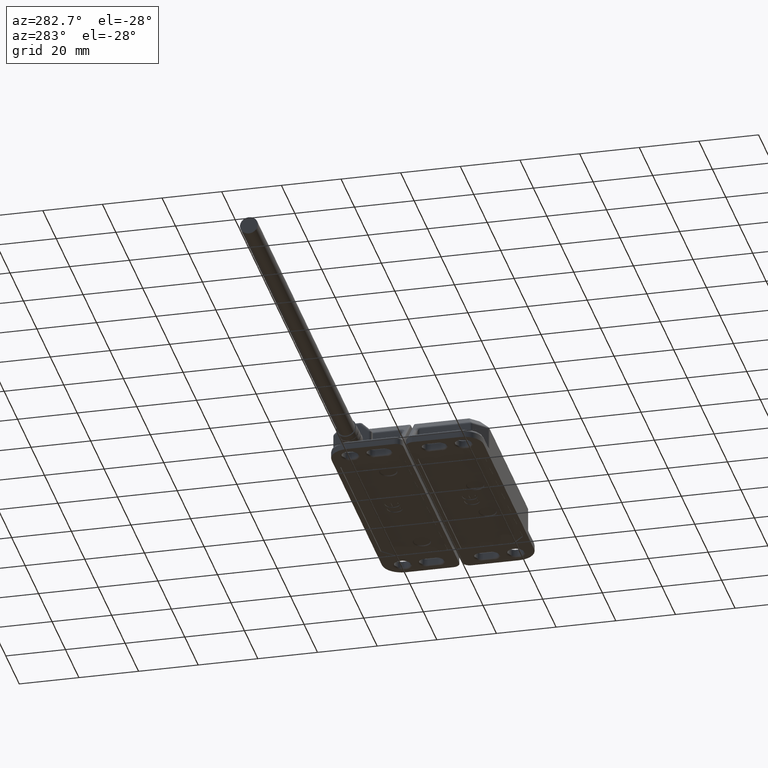
[diagram: clean part render]
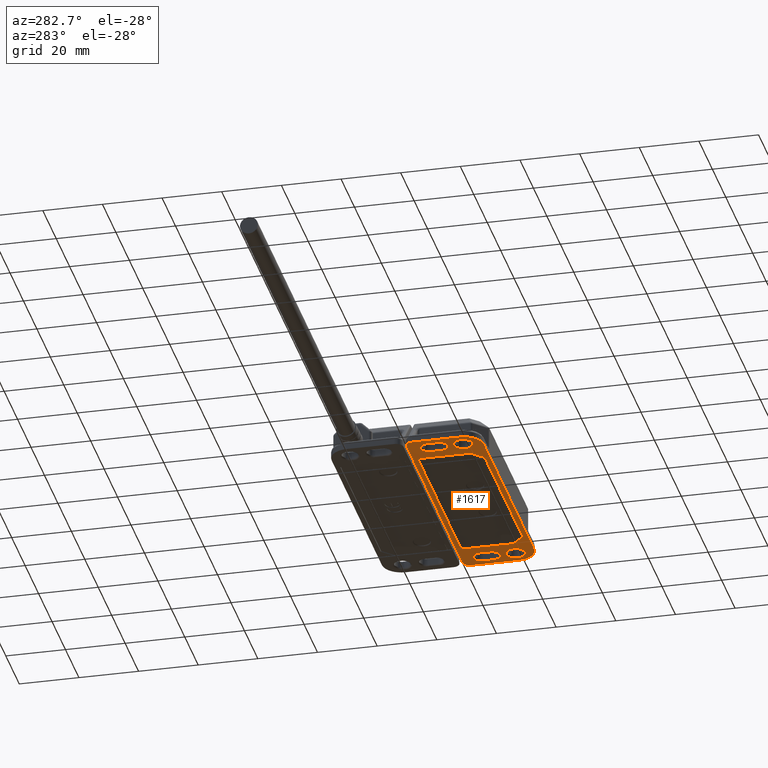
[diagram: same view with one face highlighted and labeled with its STEP entity id]
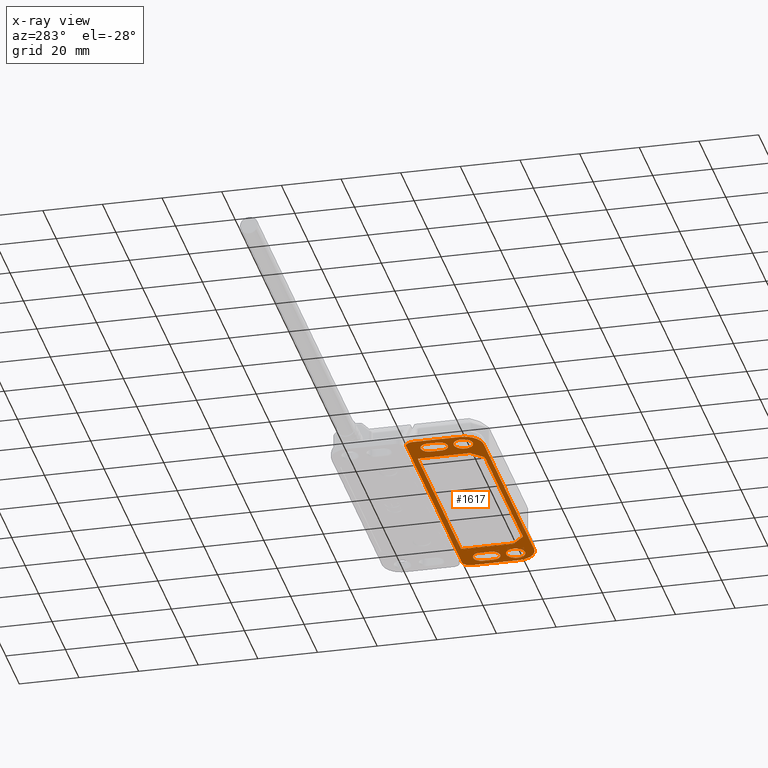
[diagram: x-ray of the same camera — body ghosted, the highlighted face saturated]
A machine part, auxiliary view. The second image highlights one B-rep face of the part: STEP entity #1617.
The next image is the same camera in x-ray: the body ghosted, the highlighted face saturated — about 0% of this face is hidden behind the body in this view.
In plain terms, the highlighted planar face has unit normal (0, -0, -1).
Its self-contained STEP definition (entity closure, byte-faithful):
#33 = CARTESIAN_POINT ( 'NONE',  ( 3.295273954928055200, 0.5210394319530911000, -0.0000000000000000000 ) ) ;
#68 = CARTESIAN_POINT ( 'NONE',  ( 0.6125085215207710700, 0.9115572201020977200, -6.829619984160658000E-017 ) ) ;
#135 = EDGE_CURVE ( 'NONE', #3612, #22815, #5344, .T. ) ;
#166 = ORIENTED_EDGE ( 'NONE', *, *, #10923, .T. ) ;
#174 = EDGE_CURVE ( 'NONE', #11935, #6633, #22041, .T. ) ;
#177 = CARTESIAN_POINT ( 'NONE',  ( 3.144680806254596600, 0.7598319794446506400, -0.0000000000000000000 ) ) ;
#182 = VECTOR ( 'NONE', #13482, 39.37007874015748100 ) ;
#259 = ORIENTED_EDGE ( 'NONE', *, *, #5769, .T. ) ;
#360 = CARTESIAN_POINT ( 'NONE',  ( 3.334910545885720900, 0.1868911393547552100, -0.0000000000000000000 ) ) ;
#373 = DIRECTION ( 'NONE',  ( 0.0000000000000000000, 1.000000000000000000, 0.0000000000000000000 ) ) ;
#425 = CARTESIAN_POINT ( 'NONE',  ( 0.2413587166354577700, 0.6104818388087681600, -0.0000000000000000000 ) ) ;
#432 = CARTESIAN_POINT ( 'NONE',  ( 3.164585275882892300, 0.2366451646214204300, -0.0000000000000000000 ) ) ;
#464 = VERTEX_POINT ( 'NONE', #2534 ) ;
#565 = CARTESIAN_POINT ( 'NONE',  ( 3.149852238804296400, 0.6838373219009926700, -0.0000000000000000000 ) ) ;
#628 = EDGE_CURVE ( 'NONE', #1657, #21210, #16453, .T. ) ;
#634 = CARTESIAN_POINT ( 'NONE',  ( 3.383195120379753900, 0.6779640473491647100, -0.0000000000000000000 ) ) ;
#678 = CARTESIAN_POINT ( 'NONE',  ( 3.003937007874016200, 0.9842519685039370400, 0.0000000000000000000 ) ) ;
#703 = CARTESIAN_POINT ( 'NONE',  ( 3.384042401021059900, 0.6799567661381548100, -0.0000000000000000000 ) ) ;
#728 = EDGE_LOOP ( 'NONE', ( #12847, #10164, #20766, #5239, #15913, #11395, #4833, #8941 ) ) ;
#777 = VERTEX_POINT ( 'NONE', #5017 ) ;
#791 = CARTESIAN_POINT ( 'NONE',  ( 3.371063382723834300, 0.6553530241802971700, -0.0000000000000000000 ) ) ;
#803 = DIRECTION ( 'NONE',  ( -0.7071067811865504600, 0.7071067811865444600, 0.0000000000000000000 ) ) ;
#874 = CARTESIAN_POINT ( 'NONE',  ( 3.149161178775382800, 0.6857088321836374300, -0.0000000000000000000 ) ) ;
#928 = FACE_BOUND ( 'NONE', #23057, .T. ) ;
#956 = CARTESIAN_POINT ( 'NONE',  ( 0.1579058189615059900, 0.5165174075409825200, -0.0000000000000000000 ) ) ;
#985 = CARTESIAN_POINT ( 'NONE',  ( 0.08758165726882499700, 0.2582588646958110500, -0.0000000000000000000 ) ) ;
#1056 = CARTESIAN_POINT ( 'NONE',  ( 0.3070866141732285200, 0.4133858267716536400, 0.0000000000000000000 ) ) ;
#1168 = DIRECTION ( 'NONE',  ( -1.000000000000000000, 0.0000000000000000000, -0.0000000000000000000 ) ) ;
#1196 = CARTESIAN_POINT ( 'NONE',  ( 0.0000000000000000000, 0.7283464566929135400, 0.0000000000000000000 ) ) ;
#1323 = CARTESIAN_POINT ( 'NONE',  ( 0.3070866141732285200, 0.2755905511811024300, 0.0000000000000000000 ) ) ;
#1328 = CARTESIAN_POINT ( 'NONE',  ( 3.369088984147055000, 0.8051385095102291400, -0.0000000000000000000 ) ) ;
#1411 = ORIENTED_EDGE ( 'NONE', *, *, #15459, .T. ) ;
#1418 = EDGE_LOOP ( 'NONE', ( #3214, #15709 ) ) ;
#1459 = EDGE_CURVE ( 'NONE', #13305, #11935, #12887, .T. ) ;
#1460 = DIRECTION ( 'NONE',  ( -0.0000000000000000000, -1.000000000000000000, -0.0000000000000000000 ) ) ;
#1491 = CARTESIAN_POINT ( 'NONE',  ( 3.392595091355313100, 0.7481549769095198200, -0.0000000000000000000 ) ) ;
#1497 = CARTESIAN_POINT ( 'NONE',  ( 0.1542143143391676000, 0.8469024247721125300, -0.0000000000000000000 ) ) ;
#1528 = DIRECTION ( 'NONE',  ( -1.000000000000000000, 5.551115123125778300E-014, 0.0000000000000000000 ) ) ;
#1568 = CARTESIAN_POINT ( 'NONE',  ( 3.321065187831918400, 0.8425196580470875100, -0.0000000000000000000 ) ) ;
#1575 = CARTESIAN_POINT ( 'NONE',  ( 0.1570291095687736400, 0.8479048659740181500, -0.0000000000000000000 ) ) ;
#1617 = ADVANCED_FACE ( 'NONE', ( #14345, #928, #19343, #23733, #13748, #11455 ), #5399, .T. ) ;
#1629 = EDGE_CURVE ( 'NONE', #3612, #2225, #9688, .T. ) ;
#1657 = VERTEX_POINT ( 'NONE', #7275 ) ;
#1664 = CARTESIAN_POINT ( 'NONE',  ( 3.281720705985419000, 0.5236193945956255600, -0.0000000000000000000 ) ) ;
#1671 = CARTESIAN_POINT ( 'NONE',  ( 3.302559502042246900, 0.1709768162269582600, -0.0000000000000000000 ) ) ;
#1749 = CARTESIAN_POINT ( 'NONE',  ( 0.3217289496230305600, 0.7481549769099961100, -0.0000000000000000000 ) ) ;
#1754 = CARTESIAN_POINT ( 'NONE',  ( 3.165542681964615700, 0.4547773625820647500, 0.0000000000000000000 ) ) ;
#1761 = CARTESIAN_POINT ( 'NONE',  ( 3.367617717495806900, 0.2289099134639777900, -0.0000000000000000000 ) ) ;
#1791 = CARTESIAN_POINT ( 'NONE',  ( 3.157480314960629600, 0.4133858267716535300, 0.0000000000000000000 ) ) ;
#1798 = LINE ( 'NONE', #11794, #4967 ) ;
#1825 = CARTESIAN_POINT ( 'NONE',  ( 0.3143887788287402800, 0.7737104916636956500, 0.0000000000000000000 ) ) ;
#1863 = VECTOR ( 'NONE', #17417, 39.37007874015748100 ) ;
#1968 = VERTEX_POINT ( 'NONE', #17714 ) ;
#1999 = CARTESIAN_POINT ( 'NONE',  ( 3.370562562221846500, 0.4530794499644984500, 0.0000000000000000000 ) ) ;
#2036 = EDGE_CURVE ( 'NONE', #2225, #14126, #18170, .T. ) ;
#2063 = CARTESIAN_POINT ( 'NONE',  ( 3.153543334079038600, 0.7816951090918182700, -0.0000000000000000000 ) ) ;
#2090 = CARTESIAN_POINT ( 'NONE',  ( 3.366141732283464400, 0.09842519685039372000, 0.0000000000000000000 ) ) ;
#2133 = VECTOR ( 'NONE', #6585, 39.37007874015748100 ) ;
#2134 = CARTESIAN_POINT ( 'NONE',  ( 3.208661417322834300, 0.7283464566929135400, 0.0000000000000000000 ) ) ;
#2207 = ORIENTED_EDGE ( 'NONE', *, *, #14367, .T. ) ;
#2221 = ORIENTED_EDGE ( 'NONE', *, *, #12062, .T. ) ;
#2225 = VERTEX_POINT ( 'NONE', #1196 ) ;
#2270 = ORIENTED_EDGE ( 'NONE', *, *, #23315, .T. ) ;
#2301 = CARTESIAN_POINT ( 'NONE',  ( 0.07931200857283710000, 0.6829824217221258700, 0.0000000000000000000 ) ) ;
#2338 = B_SPLINE_CURVE_WITH_KNOTS ( 'NONE', 3,
 ( #20194, #10953, #1491, #24044, #14691, #5135, #22078, #23964, #3520, #1328, #14443, #7261, #12725, #1568, #3274, #16506, #20350, #22253, #16273, #6946, #20025, #8801, #21926, #13202, #16669, #3589, #7503, #9224, #20685, #18557, #20773, #2063, #5801, #9386, #11122, #177, #11437, #12964 ),
 .UNSPECIFIED., .F., .F.,
 ( 4, 1, 1, 1, 2, 2, 2, 1, 1, 1, 2, 2, 2, 1, 1, 1, 2, 2, 2, 1, 1, 1, 2, 2, 4 ),
 ( 0.0000000000000000000, 0.06250000000001498800, 0.09375000000002208000, 0.1093750000000245100, 0.1171875000000257200, 0.1250000000000269200, 0.2500000000000317500, 0.3125000000000331400, 0.3437500000000355300, 0.3593750000000366900, 0.3671875000000373000, 0.3750000000000379100, 0.5000000000000366400, 0.5625000000000381900, 0.5937500000000410800, 0.6093750000000446300, 0.6171875000000441900, 0.6250000000000437400, 0.7500000000000461900, 0.8125000000000474100, 0.8437500000000473000, 0.8593750000000473000, 0.8671875000000465200, 0.8750000000000457400, 1.000000000000000000 ),
 .UNSPECIFIED. ) ;
#2425 = CARTESIAN_POINT ( 'NONE',  ( 3.251709807645767600, 0.6023648576719818900, -0.0000000000000000000 ) ) ;
#2461 = CARTESIAN_POINT ( 'NONE',  ( 0.2366716778327774600, 0.6087880474118087000, -0.0000000000000000000 ) ) ;
#2512 = CARTESIAN_POINT ( 'NONE',  ( 3.390752264611545600, 0.6968609339406878200, -0.0000000000000000000 ) ) ;
#2534 = CARTESIAN_POINT ( 'NONE',  ( 0.07086614173228363000, 0.7283464566929134200, 0.0000000000000000000 ) ) ;
#2597 = CARTESIAN_POINT ( 'NONE',  ( 3.146062926312422000, 0.6951336374443044500, -0.0000000000000000000 ) ) ;
#2599 = CARTESIAN_POINT ( 'NONE',  ( 3.003937007874016200, 0.7515248095582353100, 0.0000000000000000000 ) ) ;
#2641 = CARTESIAN_POINT ( 'NONE',  ( 0.2855498055278352700, 0.4805798372237500800, -0.0000000000000000000 ) ) ;
#2707 = CARTESIAN_POINT ( 'NONE',  ( 0.2515677051012913400, 0.1786890612753159700, -0.0000000000000000000 ) ) ;
#2733 = EDGE_CURVE ( 'NONE', #8628, #17983, #9092, .T. ) ;
#2758 = DIRECTION ( 'NONE',  ( -0.7071067811865512400, -0.7071067811865436900, 0.0000000000000000000 ) ) ;
#2939 = CARTESIAN_POINT ( 'NONE',  ( 0.3228346456692916000, 0.7283464566929134200, 0.0000000000000000000 ) ) ;
#3024 = CARTESIAN_POINT ( 'NONE',  ( 0.1554592772638621300, 0.1734165315970409800, 0.0000000000000000000 ) ) ;
#3100 = CARTESIAN_POINT ( 'NONE',  ( 0.2559055118110236700, 0.7283464566929135400, 0.0000000000000000000 ) ) ;
#3214 = ORIENTED_EDGE ( 'NONE', *, *, #15804, .T. ) ;
#3236 = DIRECTION ( 'NONE',  ( -1.000000000000000000, -1.387778780781444600E-014, 0.0000000000000000000 ) ) ;
#3268 = DIRECTION ( 'NONE',  ( -0.0000000000000000000, -0.0000000000000000000, 1.000000000000000000 ) ) ;
#3274 = CARTESIAN_POINT ( 'NONE',  ( 3.318098944776617400, 0.8438250416397969900, -0.0000000000000000000 ) ) ;
#3355 = CARTESIAN_POINT ( 'NONE',  ( 0.2982228424148590800, 0.8051385095102126000, -0.0000000000000000000 ) ) ;
#3448 = CARTESIAN_POINT ( 'NONE',  ( 0.2698438262125662500, 0.8316933039844551800, -0.0000000000000000000 ) ) ;
#3501 = CARTESIAN_POINT ( 'NONE',  ( 2.984251968503937500, 0.08661417322834648300, 0.0000000000000000000 ) ) ;
#3520 = CARTESIAN_POINT ( 'NONE',  ( 3.378459994559339200, 0.7908822200010738900, -0.0000000000000000000 ) ) ;
#3531 = CARTESIAN_POINT ( 'NONE',  ( 3.232873568824013300, 0.5179995617258063000, -0.0000000000000000000 ) ) ;
#3536 = CARTESIAN_POINT ( 'NONE',  ( 3.285042355861401500, 0.1663194936817493900, -0.0000000000000000000 ) ) ;
#3541 = CARTESIAN_POINT ( 'NONE',  ( 0.6264279463472778300, 0.9173228346456693300, 0.0000000000000000000 ) ) ;
#3589 = CARTESIAN_POINT ( 'NONE',  ( 3.222352500462295000, 0.8458848418208625400, 0.0000000000000000000 ) ) ;
#3591 = VECTOR ( 'NONE', #373, 39.37007874015748100 ) ;
#3594 = CARTESIAN_POINT ( 'NONE',  ( 0.2472328030443155200, 0.8438250416398013200, -0.0000000000000000000 ) ) ;
#3599 = CARTESIAN_POINT ( 'NONE',  ( 3.374163443413638100, 0.4424464670852558100, -0.0000000000000000000 ) ) ;
#3612 = VERTEX_POINT ( 'NONE', #18757 ) ;
#3679 = CARTESIAN_POINT ( 'NONE',  ( 0.1200583408833803800, 0.8297189054067999300, -0.0000000000000000000 ) ) ;
#3714 = LINE ( 'NONE', #14023, #17444 ) ;
#3723 = EDGE_CURVE ( 'NONE', #20082, #22815, #6084, .T. ) ;
#3833 = CARTESIAN_POINT ( 'NONE',  ( 3.340289998061827700, 0.4967119900884677300, -0.0000000000000000000 ) ) ;
#3920 = CARTESIAN_POINT ( 'NONE',  ( 3.157480314960630100, 0.2685851138722600300, 0.0000000000000000000 ) ) ;
#4012 = CARTESIAN_POINT ( 'NONE',  ( 3.322433846833325400, 0.1786890612752890000, -0.0000000000000000000 ) ) ;
#4017 = DIRECTION ( 'NONE',  ( -0.0000000000000000000, -1.000000000000000000, -0.0000000000000000000 ) ) ;
#4084 = CARTESIAN_POINT ( 'NONE',  ( 3.226325418996154300, 0.1734165315970412900, 0.0000000000000000000 ) ) ;
#4114 = LINE ( 'NONE', #9572, #12885 ) ;
#4131 = EDGE_CURVE ( 'NONE', #21295, #19839, #6391, .T. ) ;
#4188 = VERTEX_POINT ( 'NONE', #11037 ) ;
#4214 = CARTESIAN_POINT ( 'NONE',  ( 0.07519678458013905100, 0.6951336374443368700, -0.0000000000000000000 ) ) ;
#4238 = CARTESIAN_POINT ( 'NONE',  ( 3.366141732283464400, -4.147247930722559100E-018, 0.0000000000000000000 ) ) ;
#4386 = VECTOR ( 'NONE', #4017, 39.37007874015748100 ) ;
#4388 = LINE ( 'NONE', #14762, #18752 ) ;
#4395 = CARTESIAN_POINT ( 'NONE',  ( 0.2999816532509659800, 0.4523312133313435700, -0.0000000000000000000 ) ) ;
#4429 = CARTESIAN_POINT ( 'NONE',  ( 3.236224303140937200, 0.6053133850130461000, -0.0000000000000000000 ) ) ;
#4484 = CARTESIAN_POINT ( 'NONE',  ( 0.09982571707903870100, 0.4659830838060993700, -0.0000000000000000000 ) ) ;
#4552 = CARTESIAN_POINT ( 'NONE',  ( 0.1242769310716567400, 0.1922643878644994800, -0.0000000000000000000 ) ) ;
#4609 = EDGE_LOOP ( 'NONE', ( #8973, #9848, #19713, #20476 ) ) ;
#4611 = ORIENTED_EDGE ( 'NONE', *, *, #20852, .T. ) ;
#4833 = ORIENTED_EDGE ( 'NONE', *, *, #11432, .T. ) ;
#4874 = CARTESIAN_POINT ( 'NONE',  ( 0.1898483084245665700, 0.5236233735683292200, -0.0000000000000000000 ) ) ;
#4967 = VECTOR ( 'NONE', #19160, 39.37007874015748100 ) ;
#5017 = CARTESIAN_POINT ( 'NONE',  ( 0.08661417322834669100, 0.2755905511811024300, 0.0000000000000000000 ) ) ;
#5118 = LINE ( 'NONE', #9750, #182 ) ;
#5135 = CARTESIAN_POINT ( 'NONE',  ( 3.386271892090759700, 0.7709840812020519700, -0.0000000000000000000 ) ) ;
#5146 = EDGE_CURVE ( 'NONE', #777, #22250, #16210, .T. ) ;
#5239 = ORIENTED_EDGE ( 'NONE', *, *, #2036, .T. ) ;
#5305 = CARTESIAN_POINT ( 'NONE',  ( 0.09350354640934036000, 0.8013398892048541100, -0.0000000000000000000 ) ) ;
#5344 = CIRCLE ( 'NONE', #15095, 0.09842519685039370600 ) ;
#5350 = DIRECTION ( 'NONE',  ( -0.0000000000000000000, -0.0000000000000000000, 1.000000000000000000 ) ) ;
#5391 = CARTESIAN_POINT ( 'NONE',  ( 0.2569604339989778300, 0.8392325245812033400, -0.0000000000000000000 ) ) ;
#5398 = CARTESIAN_POINT ( 'NONE',  ( 3.309107651870010400, 0.5155598463557165000, 0.0000000000000000000 ) ) ;
#5399 = PLANE ( 'NONE',  #21642 ) ;
#5483 = CARTESIAN_POINT ( 'NONE',  ( 3.157480314960629600, 0.4274107464384360700, 0.0000000000000000000 ) ) ;
#5562 = CARTESIAN_POINT ( 'NONE',  ( 0.08008027545112485200, 0.7756511316985418300, 0.0000000000000000000 ) ) ;
#5566 = CARTESIAN_POINT ( 'NONE',  ( 3.331587084578261600, 0.5038134744447717600, -0.0000000000000000000 ) ) ;
#5666 = CARTESIAN_POINT ( 'NONE',  ( 0.3070866141732285200, 0.2755905511811024300, 0.0000000000000000000 ) ) ;
#5731 = CARTESIAN_POINT ( 'NONE',  ( 3.212999224032714500, 0.5102873166775383500, -0.0000000000000000000 ) ) ;
#5767 = CARTESIAN_POINT ( 'NONE',  ( 0.0000000000000000000, 0.0000000000000000000, 0.0000000000000000000 ) ) ;
#5769 = EDGE_CURVE ( 'NONE', #21210, #10986, #10902, .T. ) ;
#5801 = CARTESIAN_POINT ( 'NONE',  ( 3.152237950486274100, 0.7787288660364958300, -0.0000000000000000000 ) ) ;
#5896 = DIRECTION ( 'NONE',  ( -0.0000000000000000000, -1.000000000000000000, -0.0000000000000000000 ) ) ;
#5967 = CARTESIAN_POINT ( 'NONE',  ( 0.4663955358034143100, 0.7654442343847422900, -6.829619984160658000E-017 ) ) ;
#5974 = CARTESIAN_POINT ( 'NONE',  ( 3.223631585979899800, 0.1745470115790711800, -0.0000000000000000000 ) ) ;
#6049 = CARTESIAN_POINT ( 'NONE',  ( 0.1238569611889288200, 0.6249996094014025300, -0.0000000000000000000 ) ) ;
#6062 = CARTESIAN_POINT ( 'NONE',  ( 3.164870508644279700, 0.2358969279882615300, 0.0000000000000000000 ) ) ;
#6084 = LINE ( 'NONE', #5767, #14248 ) ;
#6170 = CARTESIAN_POINT ( 'NONE',  ( 3.344508588251257700, 0.6269740079797995200, -0.0000000000000000000 ) ) ;
#6200 = CARTESIAN_POINT ( 'NONE',  ( 0.3077364615890269600, 0.6682364163946635800, -0.0000000000000000000 ) ) ;
#6279 = ORIENTED_EDGE ( 'NONE', *, *, #16508, .T. ) ;
#6301 = CARTESIAN_POINT ( 'NONE',  ( 0.2996964204895756200, 0.4530794499645068900, 0.0000000000000000000 ) ) ;
#6353 = CARTESIAN_POINT ( 'NONE',  ( 0.1421330823003946800, 0.5102873166774833900, -0.0000000000000000000 ) ) ;
#6368 = CARTESIAN_POINT ( 'NONE',  ( 3.003937007874016200, 0.08661417322834648300, 0.0000000000000000000 ) ) ;
#6383 = CARTESIAN_POINT ( 'NONE',  ( 0.2435310314176442900, 0.5132870088346007700, -0.0000000000000000000 ) ) ;
#6391 = CIRCLE ( 'NONE', #20744, 0.01968503937007875700 ) ;
#6400 = CARTESIAN_POINT ( 'NONE',  ( 0.09580685409874764600, 0.4574707762248492200, -0.0000000000000000000 ) ) ;
#6456 = CARTESIAN_POINT ( 'NONE',  ( 0.2938750703225795300, 0.2229932941467438500, -0.0000000000000000000 ) ) ;
#6460 = CARTESIAN_POINT ( 'NONE',  ( 0.2494476507352375300, 0.5104105033934026600, -0.0000000000000000000 ) ) ;
#6585 = DIRECTION ( 'NONE',  ( 0.0000000000000000000, 1.000000000000000000, 0.0000000000000000000 ) ) ;
#6633 = VERTEX_POINT ( 'NONE', #12916 ) ;
#6772 = CARTESIAN_POINT ( 'NONE',  ( 0.09311445662531039900, 0.2382828322068121800, -0.0000000000000000000 ) ) ;
#6946 = CARTESIAN_POINT ( 'NONE',  ( 3.259713171539458300, 0.8543320351352032800, -0.0000000000000000000 ) ) ;
#6986 = LINE ( 'NONE', #19350, #20760 ) ;
#7063 = CIRCLE ( 'NONE', #13806, 0.01968503937007875700 ) ;
#7103 = CARTESIAN_POINT ( 'NONE',  ( 0.2283426259930970400, 0.8513795283727805300, -0.0000000000000000000 ) ) ;
#7261 = CARTESIAN_POINT ( 'NONE',  ( 3.340709967944924600, 0.8316933039844405200, -0.0000000000000000000 ) ) ;
#7273 = CARTESIAN_POINT ( 'NONE',  ( 3.228771960693801500, 0.5165174075409825200, -0.0000000000000000000 ) ) ;
#7275 = CARTESIAN_POINT ( 'NONE',  ( 3.377952755905511600, 0.2755905511811023700, 0.0000000000000000000 ) ) ;
#7281 = CARTESIAN_POINT ( 'NONE',  ( 3.157480314960629600, 0.2755905511811024300, 0.0000000000000000000 ) ) ;
#7340 = CARTESIAN_POINT ( 'NONE',  ( 0.2452400842554305600, 0.8446723222810109700, -0.0000000000000000000 ) ) ;
#7343 = CARTESIAN_POINT ( 'NONE',  ( 3.314397173149637300, 0.5132870088347577500, -0.0000000000000000000 ) ) ;
#7427 = CARTESIAN_POINT ( 'NONE',  ( 3.228022912240216000, 0.5162318535604386600, 0.0000000000000000000 ) ) ;
#7503 = CARTESIAN_POINT ( 'NONE',  ( 3.205180772124305700, 0.8390899158188023200, -0.0000000000000000000 ) ) ;
#7679 = CARTESIAN_POINT ( 'NONE',  ( 3.296772776204359700, 0.1691419023999922700, -0.0000000000000000000 ) ) ;
#7703 = VERTEX_POINT ( 'NONE', #8596 ) ;
#7808 = CARTESIAN_POINT ( 'NONE',  ( 0.1595442198040515600, 0.5171223751997080500, -0.0000000000000000000 ) ) ;
#7838 = CARTESIAN_POINT ( 'NONE',  ( 3.369890388901525500, 0.2341990153707208300, 0.0000000000000000000 ) ) ;
#7896 = CARTESIAN_POINT ( 'NONE',  ( 0.07086614173228363000, 0.7283464566929134200, 0.0000000000000000000 ) ) ;
#7898 = CARTESIAN_POINT ( 'NONE',  ( 2.984251968503937500, 0.06692913385826770900, 0.0000000000000000000 ) ) ;
#7905 = CARTESIAN_POINT ( 'NONE',  ( 3.195143072803993300, 0.1922643878645115800, -0.0000000000000000000 ) ) ;
#7910 = EDGE_CURVE ( 'NONE', #23420, #20082, #11775, .T. ) ;
#7923 = CARTESIAN_POINT ( 'NONE',  ( 0.09506537807427128900, 0.4557269853223195300, -0.0000000000000000000 ) ) ;
#7940 = CARTESIAN_POINT ( 'NONE',  ( 3.148159141733458900, 0.6885226060444541400, -0.0000000000000000000 ) ) ;
#7944 = EDGE_CURVE ( 'NONE', #22250, #8628, #13512, .T. ) ;
#7978 = EDGE_CURVE ( 'NONE', #15368, #21997, #13205, .T. ) ;
#8001 = CARTESIAN_POINT ( 'NONE',  ( 0.08661417322834669100, 0.4133858267716535300, 0.0000000000000000000 ) ) ;
#8021 = CARTESIAN_POINT ( 'NONE',  ( 3.381889736786911600, 0.6749978042937330200, -0.0000000000000000000 ) ) ;
#8105 = CARTESIAN_POINT ( 'NONE',  ( 3.300924954939036500, 0.6066911065754206900, -0.0000000000000000000 ) ) ;
#8262 = CARTESIAN_POINT ( 'NONE',  ( 3.220412279773756700, 0.6115761723495879400, 0.0000000000000000000 ) ) ;
#8399 = CARTESIAN_POINT ( 'NONE',  ( 0.1828462231482888600, 0.1653569833571078300, -0.0000000000000000000 ) ) ;
#8504 = B_SPLINE_CURVE_WITH_KNOTS ( 'NONE', 3,
 ( #7281, #3920, #17016, #22266, #11457, #19141, #432, #6062, #20864, #12826, #7905, #18491, #13464, #9818, #5974, #10971, #4084, #22744, #15204, #24062, #3536, #7679, #1671, #14706, #20372, #17085, #4012, #360, #16608, #20793, #19065, #1761, #24140, #14794, #7838, #9579, #22660, #13386 ),
 .UNSPECIFIED., .F., .F.,
 ( 4, 1, 1, 1, 2, 2, 2, 1, 1, 1, 2, 2, 2, 1, 1, 1, 2, 2, 2, 1, 1, 1, 2, 2, 4 ),
 ( 0.0000000000000000000, 0.06249999999999154800, 0.09374999999998717700, 0.1093749999999855100, 0.1171874999999848300, 0.1249999999999841500, 0.2499999999999902900, 0.3124999999999949500, 0.3437499999999953400, 0.3593749999999955000, 0.3671874999999955600, 0.3749999999999955600, 0.4999999999999917800, 0.5624999999999923400, 0.5937499999999926700, 0.6093749999999952300, 0.6171874999999941200, 0.6249999999999931200, 0.7499999999999889000, 0.8124999999999884500, 0.8437499999999869000, 0.8593749999999870100, 0.8671874999999879000, 0.8749999999999886800, 1.000000000000000000 ),
 .UNSPECIFIED. ) ;
#8596 = CARTESIAN_POINT ( 'NONE',  ( 0.4606299212598424200, 0.08661417322834640000, 0.0000000000000000000 ) ) ;
#8628 = VERTEX_POINT ( 'NONE', #1056 ) ;
#8638 = CARTESIAN_POINT ( 'NONE',  ( 0.2978939333028427000, 0.2315056017279374900, -0.0000000000000000000 ) ) ;
#8720 = CARTESIAN_POINT ( 'NONE',  ( 0.3070866141732284700, 0.2615656315145118400, -0.0000000000000000000 ) ) ;
#8801 = CARTESIAN_POINT ( 'NONE',  ( 3.234508115927154900, 0.8500018068104059400, -0.0000000000000000000 ) ) ;
#8923 = DIRECTION ( 'NONE',  ( -0.0000000000000000000, -0.0000000000000000000, 1.000000000000000000 ) ) ;
#8936 = VERTEX_POINT ( 'NONE', #13666 ) ;
#8941 = ORIENTED_EDGE ( 'NONE', *, *, #7910, .T. ) ;
#8973 = ORIENTED_EDGE ( 'NONE', *, *, #9266, .T. ) ;
#8981 = DIRECTION ( 'NONE',  ( -1.000000000000000000, 0.0000000000000000000, 0.0000000000000000000 ) ) ;
#9030 = CARTESIAN_POINT ( 'NONE',  ( 0.09842519685039370600, 0.09842519685039370600, 0.0000000000000000000 ) ) ;
#9061 = CARTESIAN_POINT ( 'NONE',  ( 0.07086614173228363000, 0.7283464566929134200, 0.0000000000000000000 ) ) ;
#9064 = CARTESIAN_POINT ( 'NONE',  ( 3.364618025339119800, 0.4681031381721644200, -0.0000000000000000000 ) ) ;
#9092 = B_SPLINE_CURVE_WITH_KNOTS ( 'NONE', 3,
 ( #13798, #10327, #23311, #23472, #11948, #15614, #4395, #6301, #19383, #2641, #15703, #17576, #6460, #6383, #23221, #12023, #15779, #11289, #12393, #4874, #19339, #13157, #11221, #7808, #956, #11994, #6353, #19330, #9839, #17590, #4484, #21050, #6400, #7923, #23086, #21207, #19243, #15719 ),
 .UNSPECIFIED., .F., .F.,
 ( 4, 1, 1, 1, 2, 2, 2, 1, 1, 1, 2, 2, 2, 1, 1, 1, 2, 2, 2, 1, 1, 1, 2, 2, 4 ),
 ( 0.0000000000000000000, 0.06250000000000144300, 0.09375000000000186000, 0.1093750000000018200, 0.1171875000000017900, 0.1250000000000017500, 0.2500000000000028900, 0.3125000000000033300, 0.3437500000000034400, 0.3593750000000035000, 0.3671875000000038300, 0.3750000000000041100, 0.5000000000000038900, 0.5625000000000038900, 0.5937500000000036600, 0.6093750000000035500, 0.6171875000000035500, 0.6250000000000036600, 0.7500000000000041100, 0.8125000000000043300, 0.8437500000000044400, 0.8593750000000045500, 0.8671875000000042200, 0.8750000000000040000, 1.000000000000000000 ),
 .UNSPECIFIED. ) ;
#9142 = CARTESIAN_POINT ( 'NONE',  ( 3.184390372116512800, 0.4859592894008261700, -0.0000000000000000000 ) ) ;
#9189 = CARTESIAN_POINT ( 'NONE',  ( 3.157480314960629600, 0.9842519685039370400, 0.0000000000000000000 ) ) ;
#9224 = CARTESIAN_POINT ( 'NONE',  ( 3.190924482615382200, 0.8297189054067479800, -0.0000000000000000000 ) ) ;
#9231 = CARTESIAN_POINT ( 'NONE',  ( 0.1770477398069630600, 0.8532273339442823000, -0.0000000000000000000 ) ) ;
#9236 = CARTESIAN_POINT ( 'NONE',  ( 3.377952755905512000, 0.4203912640802228200, 0.0000000000000000000 ) ) ;
#9266 = EDGE_CURVE ( 'NONE', #17983, #777, #14342, .T. ) ;
#9314 = CARTESIAN_POINT ( 'NONE',  ( 0.3185040028214362600, 0.7615592759414878700, -0.0000000000000000000 ) ) ;
#9319 = CARTESIAN_POINT ( 'NONE',  ( 3.377952755905511600, 0.4133858267716535300, 0.0000000000000000000 ) ) ;
#9386 = CARTESIAN_POINT ( 'NONE',  ( 3.151390669845020000, 0.7767361472475852200, -0.0000000000000000000 ) ) ;
#9572 = CARTESIAN_POINT ( 'NONE',  ( 3.464566929133858300, 0.9842519685039370400, 0.0000000000000000000 ) ) ;
#9579 = CARTESIAN_POINT ( 'NONE',  ( 3.375372798464236500, 0.2480398416611782600, -0.0000000000000000000 ) ) ;
#9688 = LINE ( 'NONE', #23640, #24018 ) ;
#9719 = CARTESIAN_POINT ( 'NONE',  ( 0.2394864730623931000, 0.6097904886137145400, -0.0000000000000000000 ) ) ;
#9750 = CARTESIAN_POINT ( 'NONE',  ( 0.0000000000000000000, 0.06692913385826772300, 0.0000000000000000000 ) ) ;
#9807 = CARTESIAN_POINT ( 'NONE',  ( 0.07898609707201247100, 0.6838373219009987700, -0.0000000000000000000 ) ) ;
#9818 = CARTESIAN_POINT ( 'NONE',  ( 3.221035897716255200, 0.1756893691181696000, -0.0000000000000000000 ) ) ;
#9839 = CARTESIAN_POINT ( 'NONE',  ( 0.1135242303841783200, 0.4859592894007843700, -0.0000000000000000000 ) ) ;
#9848 = ORIENTED_EDGE ( 'NONE', *, *, #5146, .T. ) ;
#9895 = CARTESIAN_POINT ( 'NONE',  ( 0.2736424465181636600, 0.6269740079789328800, -0.0000000000000000000 ) ) ;
#9967 = CARTESIAN_POINT ( 'NONE',  ( 0.1464679843572385100, 0.6128678717460340800, -0.0000000000000000000 ) ) ;
#10015 = CARTESIAN_POINT ( 'NONE',  ( 3.393700787401575000, 0.7123189794865931700, 0.0000000000000000000 ) ) ;
#10030 = CARTESIAN_POINT ( 'NONE',  ( 0.4803149606299210700, 0.08661417322834644200, 0.0000000000000000000 ) ) ;
#10050 = CARTESIAN_POINT ( 'NONE',  ( 0.07197183777854458700, 0.7085379364758284100, -0.0000000000000000000 ) ) ;
#10107 = EDGE_CURVE ( 'NONE', #12189, #1657, #8504, .T. ) ;
#10108 = CARTESIAN_POINT ( 'NONE',  ( 3.275719899326721100, 0.6023608782506235700, -0.0000000000000000000 ) ) ;
#10124 = DIRECTION ( 'NONE',  ( -1.000000000000000000, -2.602085213965208300E-015, 0.0000000000000000000 ) ) ;
#10149 = CARTESIAN_POINT ( 'NONE',  ( 0.09400436691199848300, 0.2358969279882515400, 0.0000000000000000000 ) ) ;
#10164 = ORIENTED_EDGE ( 'NONE', *, *, #135, .F. ) ;
#10189 = B_SPLINE_CURVE_WITH_KNOTS ( 'NONE', 3,
 ( #20665, #20904, #23257, #2597, #7940, #874, #565, #19499, #15816, #11980, #10197, #21321, #17531, #19345, #13916, #22935, #8262, #4429, #2425, #10108, #21071, #8105, #11896, #12051, #23027, #23170, #21141, #6170, #11735, #791, #19263, #8021, #634, #703, #13834, #2512, #10015, #17360 ),
 .UNSPECIFIED., .F., .F.,
 ( 4, 1, 1, 1, 2, 2, 2, 1, 1, 1, 2, 2, 2, 1, 1, 1, 2, 2, 2, 1, 1, 1, 2, 2, 4 ),
 ( 0.0000000000000000000, 0.06250000000000972800, 0.09375000000001418300, 0.1093750000000158200, 0.1171875000000166300, 0.1250000000000174300, 0.2500000000000251500, 0.3125000000000289800, 0.3437500000000292500, 0.3593750000000309200, 0.3671875000000318600, 0.3750000000000327500, 0.5000000000000081000, 0.5624999999999957800, 0.5937499999999874500, 0.6093749999999812400, 0.6171874999999801300, 0.6249999999999790200, 0.7499999999999801300, 0.8124999999999814600, 0.8437499999999825700, 0.8593749999999835700, 0.8671874999999844600, 0.8749999999999853500, 1.000000000000000000 ),
 .UNSPECIFIED. ) ;
#10197 = CARTESIAN_POINT ( 'NONE',  ( 3.184776281456062700, 0.6331160047668921200, -0.0000000000000000000 ) ) ;
#10327 = CARTESIAN_POINT ( 'NONE',  ( 0.3070866141732286300, 0.4203912640805286300, 0.0000000000000000000 ) ) ;
#10398 = CARTESIAN_POINT ( 'NONE',  ( 0.09371913415060932600, 0.2366451646214109100, -0.0000000000000000000 ) ) ;
#10483 = CARTESIAN_POINT ( 'NONE',  ( 0.2259066344719698700, 0.1691419023999921600, -0.0000000000000000000 ) ) ;
#10684 = EDGE_CURVE ( 'NONE', #7703, #4188, #11776, .T. ) ;
#10902 = B_SPLINE_CURVE_WITH_KNOTS ( 'NONE', 3,
 ( #9319, #9236, #12823, #3599, #22181, #18804, #18728, #1999, #9064, #10966, #3833, #5566, #12979, #7343, #20454, #24055, #5398, #33, #1664, #16924, #14701, #22339, #3531, #18485, #7273, #7427, #5731, #20366, #9142, #13063, #22261, #11058, #18570, #12897, #1754, #16679, #5483, #11129 ),
 .UNSPECIFIED., .F., .F.,
 ( 4, 1, 1, 1, 2, 2, 2, 1, 1, 1, 2, 2, 2, 1, 1, 1, 2, 2, 2, 1, 1, 1, 2, 2, 4 ),
 ( 0.0000000000000000000, 0.06250000000000505200, 0.09375000000000680000, 0.1093750000000080800, 0.1171875000000084100, 0.1250000000000087400, 0.2500000000000134900, 0.3125000000000156500, 0.3437500000000146500, 0.3593750000000121600, 0.3671875000000109400, 0.3750000000000096600, 0.5000000000000137700, 0.5625000000000182100, 0.5937500000000204300, 0.6093750000000192100, 0.6171875000000208700, 0.6250000000000226500, 0.7500000000000233100, 0.8125000000000235400, 0.8437500000000222000, 0.8593750000000207600, 0.8671875000000199800, 0.8750000000000193200, 1.000000000000000000 ),
 .UNSPECIFIED. ) ;
#10923 = EDGE_CURVE ( 'NONE', #10986, #12189, #19082, .T. ) ;
#10953 = CARTESIAN_POINT ( 'NONE',  ( 3.393700787401573700, 0.7363531727711371000, 0.0000000000000000000 ) ) ;
#10966 = CARTESIAN_POINT ( 'NONE',  ( 3.356415947260869400, 0.4805798372233396900, -0.0000000000000000000 ) ) ;
#10971 = CARTESIAN_POINT ( 'NONE',  ( 3.225375376882415600, 0.1738055355545908600, -0.0000000000000000000 ) ) ;
#10972 = VERTEX_POINT ( 'NONE', #68 ) ;
#10986 = VERTEX_POINT ( 'NONE', #1791 ) ;
#10997 = EDGE_LOOP ( 'NONE', ( #11917, #18890 ) ) ;
#11037 = CARTESIAN_POINT ( 'NONE',  ( 0.4803149606299210700, 0.06692913385826772300, 0.0000000000000000000 ) ) ;
#11052 = CARTESIAN_POINT ( 'NONE',  ( 0.3075938528266240500, 0.7908822200015771500, -0.0000000000000000000 ) ) ;
#11058 = CARTESIAN_POINT ( 'NONE',  ( 3.167815353370161200, 0.4600664644885398800, -0.0000000000000000000 ) ) ;
#11122 = CARTESIAN_POINT ( 'NONE',  ( 3.150946417183407600, 0.7756511316985034200, 0.0000000000000000000 ) ) ;
#11123 = DIRECTION ( 'NONE',  ( -0.0000000000000000000, -0.0000000000000000000, 1.000000000000000000 ) ) ;
#11126 = CARTESIAN_POINT ( 'NONE',  ( 0.08052452811270281700, 0.7767361472475788900, -0.0000000000000000000 ) ) ;
#11129 = CARTESIAN_POINT ( 'NONE',  ( 3.157480314960629600, 0.4133858267716535300, 0.0000000000000000000 ) ) ;
#11201 = CARTESIAN_POINT ( 'NONE',  ( 0.1016199417750255900, 0.8112867106704360100, -0.0000000000000000000 ) ) ;
#11221 = CARTESIAN_POINT ( 'NONE',  ( 0.1620074270916953600, 0.5179995617258065200, -0.0000000000000000000 ) ) ;
#11289 = CARTESIAN_POINT ( 'NONE',  ( 0.2244078131960335300, 0.5210394319530913300, -0.0000000000000000000 ) ) ;
#11334 = ORIENTED_EDGE ( 'NONE', *, *, #4131, .T. ) ;
#11344 = VERTEX_POINT ( 'NONE', #3541 ) ;
#11395 = ORIENTED_EDGE ( 'NONE', *, *, #23803, .T. ) ;
#11432 = EDGE_CURVE ( 'NONE', #12992, #23420, #4114, .T. ) ;
#11437 = CARTESIAN_POINT ( 'NONE',  ( 3.141732283464567600, 0.7443739338987448400, -0.0000000000000000000 ) ) ;
#11455 = FACE_BOUND ( 'NONE', #1418, .T. ) ;
#11457 = CARTESIAN_POINT ( 'NONE',  ( 3.163103815945909900, 0.2407450181720344800, -0.0000000000000000000 ) ) ;
#11549 = CARTESIAN_POINT ( 'NONE',  ( 0.3070866141732285800, 0.9842519685039370400, 0.0000000000000000000 ) ) ;
#11595 = AXIS2_PLACEMENT_3D ( 'NONE', #3100, #18061, #16165 ) ;
#11611 = CARTESIAN_POINT ( 'NONE',  ( 0.2300588132068774900, 0.6066911065754205800, -0.0000000000000000000 ) ) ;
#11690 = CARTESIAN_POINT ( 'NONE',  ( 0.3001972409922622500, 0.6553530241810552300, -0.0000000000000000000 ) ) ;
#11735 = CARTESIAN_POINT ( 'NONE',  ( 3.362946987358443000, 0.6454062027150051500, -0.0000000000000000000 ) ) ;
#11763 = CARTESIAN_POINT ( 'NONE',  ( 0.2920808456265652800, 0.6454062027154379200, -0.0000000000000000000 ) ) ;
#11775 = CIRCLE ( 'NONE', #20114, 0.09842519685039379000 ) ;
#11776 = CIRCLE ( 'NONE', #21729, 0.01968503937007875700 ) ;
#11794 = CARTESIAN_POINT ( 'NONE',  ( 0.4606299212598424800, 0.9842519685039370400, 0.0000000000000000000 ) ) ;
#11844 = CARTESIAN_POINT ( 'NONE',  ( 0.3110235950549389300, 0.6749978042940649700, -0.0000000000000000000 ) ) ;
#11883 = EDGE_CURVE ( 'NONE', #14126, #17977, #4388, .T. ) ;
#11888 = B_SPLINE_CURVE_WITH_KNOTS ( 'NONE', 3,
 ( #7896, #21175, #10050, #4214, #19217, #19369, #9807, #2301, #17557, #15687, #19445, #6049, #23054, #22811, #9967, #11932, #13619, #21098, #20938, #23126, #17481, #11611, #2461, #9719, #425, #19298, #19132, #9895, #11763, #11690, #6200, #11844, #12164, #23455, #16010, #15842, #21508, #2939 ),
 .UNSPECIFIED., .F., .F.,
 ( 4, 1, 1, 1, 2, 2, 2, 1, 1, 1, 2, 2, 2, 1, 1, 1, 2, 2, 2, 1, 1, 1, 2, 2, 4 ),
 ( 0.0000000000000000000, 0.06250000000000219300, 0.09375000000000328900, 0.1093750000000038300, 0.1171875000000035900, 0.1250000000000033600, 0.2500000000000045500, 0.3125000000000051600, 0.3437500000000055000, 0.3593750000000053800, 0.3671875000000053300, 0.3750000000000052700, 0.5000000000000040000, 0.5625000000000033300, 0.5937500000000031100, 0.6093750000000030000, 0.6171875000000030000, 0.6250000000000030000, 0.7500000000000034400, 0.8125000000000032200, 0.8437500000000034400, 0.8593750000000034400, 0.8671875000000033300, 0.8750000000000032200, 1.000000000000000000 ),
 .UNSPECIFIED. ) ;
#11896 = CARTESIAN_POINT ( 'NONE',  ( 3.307537819564987400, 0.6087880474118090300, -0.0000000000000000000 ) ) ;
#11917 = ORIENTED_EDGE ( 'NONE', *, *, #15377, .T. ) ;
#11932 = CARTESIAN_POINT ( 'NONE',  ( 0.1484607031461336300, 0.6120205911048199900, -0.0000000000000000000 ) ) ;
#11935 = VERTEX_POINT ( 'NONE', #13117 ) ;
#11948 = CARTESIAN_POINT ( 'NONE',  ( 0.3014631131879484400, 0.4482313597807466900, -0.0000000000000000000 ) ) ;
#11980 = CARTESIAN_POINT ( 'NONE',  ( 3.166344086718155400, 0.6515544038760249200, -0.0000000000000000000 ) ) ;
#11994 = CARTESIAN_POINT ( 'NONE',  ( 0.1571567705079354400, 0.5162318535604422100, 0.0000000000000000000 ) ) ;
#12016 = CARTESIAN_POINT ( 'NONE',  ( 0.08661417322834669100, 0.2755905511811024300, 0.0000000000000000000 ) ) ;
#12023 = CARTESIAN_POINT ( 'NONE',  ( 0.2391915522514545800, 0.5151708423981701300, -0.0000000000000000000 ) ) ;
#12051 = CARTESIAN_POINT ( 'NONE',  ( 3.310352614794632500, 0.6097904886137145400, -0.0000000000000000000 ) ) ;
#12062 = EDGE_CURVE ( 'NONE', #19839, #7703, #1798, .T. ) ;
#12164 = CARTESIAN_POINT ( 'NONE',  ( 0.3123289786476577400, 0.6779640473493648800, -0.0000000000000000000 ) ) ;
#12175 = CARTESIAN_POINT ( 'NONE',  ( 0.2341565675975367500, 0.1718540027530537400, -0.0000000000000000000 ) ) ;
#12189 = VERTEX_POINT ( 'NONE', #12283 ) ;
#12256 = CARTESIAN_POINT ( 'NONE',  ( 0.1329798445549418300, 0.1851629035083539900, -0.0000000000000000000 ) ) ;
#12283 = CARTESIAN_POINT ( 'NONE',  ( 3.157480314960629600, 0.2755905511811024300, 0.0000000000000000000 ) ) ;
#12313 = VECTOR ( 'NONE', #803, 39.37007874015748900 ) ;
#12330 = CARTESIAN_POINT ( 'NONE',  ( 0.2365440168936329100, 0.1727445243923113600, 0.0000000000000000000 ) ) ;
#12340 = ORIENTED_EDGE ( 'NONE', *, *, #1459, .T. ) ;
#12393 = CARTESIAN_POINT ( 'NONE',  ( 0.2108545642532299600, 0.5236193945956254500, -0.0000000000000000000 ) ) ;
#12490 = CARTESIAN_POINT ( 'NONE',  ( 0.2990242471692424200, 0.2341990153706790500, 0.0000000000000000000 ) ) ;
#12654 = CARTESIAN_POINT ( 'NONE',  ( 0.08596432581256871500, 0.7884564969912254400, -0.0000000000000000000 ) ) ;
#12725 = CARTESIAN_POINT ( 'NONE',  ( 3.327826575731316800, 0.8392325245811921300, -0.0000000000000000000 ) ) ;
#12736 = CARTESIAN_POINT ( 'NONE',  ( 0.2797906476782176500, 0.8235769086187300100, -0.0000000000000000000 ) ) ;
#12759 = CARTESIAN_POINT ( 'NONE',  ( 3.464566929133858300, 0.7283464566929135400, 0.0000000000000000000 ) ) ;
#12823 = CARTESIAN_POINT ( 'NONE',  ( 3.376985271865033500, 0.4307175132564001200, -0.0000000000000000000 ) ) ;
#12826 = CARTESIAN_POINT ( 'NONE',  ( 3.179017123605913000, 0.2083965407289694900, -0.0000000000000000000 ) ) ;
#12847 = ORIENTED_EDGE ( 'NONE', *, *, #3723, .T. ) ;
#12848 = DIRECTION ( 'NONE',  ( -0.0000000000000000000, -0.0000000000000000000, 1.000000000000000000 ) ) ;
#12885 = VECTOR ( 'NONE', #5896, 39.37007874015748100 ) ;
#12887 = LINE ( 'NONE', #13758, #12313 ) ;
#12897 = CARTESIAN_POINT ( 'NONE',  ( 3.165931519806565800, 0.4557269853223296400, -0.0000000000000000000 ) ) ;
#12916 = CARTESIAN_POINT ( 'NONE',  ( 2.838138982786580400, 0.9173228346456693300, 0.0000000000000000000 ) ) ;
#12964 = CARTESIAN_POINT ( 'NONE',  ( 3.141732283464566700, 0.7283464566929134200, 0.0000000000000000000 ) ) ;
#12973 = CARTESIAN_POINT ( 'NONE',  ( 0.3228346456692914900, 0.7363531727714094400, 0.0000000000000000000 ) ) ;
#12979 = CARTESIAN_POINT ( 'NONE',  ( 3.320313792467026700, 0.5104105033936714400, -0.0000000000000000000 ) ) ;
#12992 = VERTEX_POINT ( 'NONE', #12759 ) ;
#13063 = CARTESIAN_POINT ( 'NONE',  ( 3.177288887760399700, 0.4772563759175722000, -0.0000000000000000000 ) ) ;
#13117 = CARTESIAN_POINT ( 'NONE',  ( 2.852058407613087700, 0.9115572201020979400, 6.829619984160658000E-017 ) ) ;
#13142 = CARTESIAN_POINT ( 'NONE',  ( 3.377952755905511600, 0.4133858267716535300, 0.0000000000000000000 ) ) ;
#13157 = CARTESIAN_POINT ( 'NONE',  ( 0.1677941529296425000, 0.5198344755527791700, -0.0000000000000000000 ) ) ;
#13202 = CARTESIAN_POINT ( 'NONE',  ( 3.225080456071526900, 0.8469024247721121900, -0.0000000000000000000 ) ) ;
#13205 = LINE ( 'NONE', #678, #1863 ) ;
#13283 = DIRECTION ( 'NONE',  ( -1.000000000000000000, 0.0000000000000000000, 0.0000000000000000000 ) ) ;
#13305 = VERTEX_POINT ( 'NONE', #15934 ) ;
#13316 = CARTESIAN_POINT ( 'NONE',  ( 3.393700787401574100, 0.7283464566929132000, 0.0000000000000000000 ) ) ;
#13371 = DIRECTION ( 'NONE',  ( 0.0000000000000000000, 0.0000000000000000000, -1.000000000000000000 ) ) ;
#13386 = CARTESIAN_POINT ( 'NONE',  ( 3.377952755905511600, 0.2755905511811023700, 0.0000000000000000000 ) ) ;
#13464 = CARTESIAN_POINT ( 'NONE',  ( 3.215119278398692600, 0.1785658745593778600, -0.0000000000000000000 ) ) ;
#13482 = DIRECTION ( 'NONE',  ( 1.000000000000000000, -0.0000000000000000000, 0.0000000000000000000 ) ) ;
#13512 = LINE ( 'NONE', #11549, #3591 ) ;
#13619 = CARTESIAN_POINT ( 'NONE',  ( 0.1495461380414833100, 0.6115761723495877200, 0.0000000000000000000 ) ) ;
#13666 = CARTESIAN_POINT ( 'NONE',  ( 0.3228346456692916000, 0.7283464566929134200, 0.0000000000000000000 ) ) ;
#13748 = FACE_BOUND ( 'NONE', #19694, .T. ) ;
#13758 = CARTESIAN_POINT ( 'NONE',  ( 2.998171393330443900, 0.7654442343847425200, 0.0000000000000000000 ) ) ;
#13798 = CARTESIAN_POINT ( 'NONE',  ( 0.3070866141732285200, 0.4133858267716536400, 0.0000000000000000000 ) ) ;
#13806 = AXIS2_PLACEMENT_3D ( 'NONE', #24081, #12848, #3236 ) ;
#13834 = CARTESIAN_POINT ( 'NONE',  ( 3.384486653682734500, 0.6810417816873543000, 0.0000000000000000000 ) ) ;
#13874 = CARTESIAN_POINT ( 'NONE',  ( 0.1527654442475920900, 0.1745470115790653800, -0.0000000000000000000 ) ) ;
#13916 = CARTESIAN_POINT ( 'NONE',  ( 3.217334126089737900, 0.6128678717459314900, -0.0000000000000000000 ) ) ;
#14023 = CARTESIAN_POINT ( 'NONE',  ( 0.0000000000000000000, 0.9173228346456693300, 0.0000000000000000000 ) ) ;
#14036 = CARTESIAN_POINT ( 'NONE',  ( 0.2357949684400761100, 0.1724589704117764600, -0.0000000000000000000 ) ) ;
#14088 = ORIENTED_EDGE ( 'NONE', *, *, #7978, .T. ) ;
#14107 = CARTESIAN_POINT ( 'NONE',  ( 0.1545092351501214100, 0.1738055355545876400, -0.0000000000000000000 ) ) ;
#14119 = CARTESIAN_POINT ( 'NONE',  ( 0.0000000000000000000, 0.9842519685039370400, 0.0000000000000000000 ) ) ;
#14126 = VERTEX_POINT ( 'NONE', #16350 ) ;
#14196 = CARTESIAN_POINT ( 'NONE',  ( 0.2640444041528182700, 0.1868911393539159900, -0.0000000000000000000 ) ) ;
#14248 = VECTOR ( 'NONE', #22373, 39.37007874015748100 ) ;
#14311 = AXIS2_PLACEMENT_3D ( 'NONE', #3501, #16255, #22063 ) ;
#14342 = LINE ( 'NONE', #18745, #4386 ) ;
#14345 = FACE_OUTER_BOUND ( 'NONE', #728, .T. ) ;
#14361 = CARTESIAN_POINT ( 'NONE',  ( 0.4803149606299210700, 0.7515248095582353100, 0.0000000000000000000 ) ) ;
#14367 = EDGE_CURVE ( 'NONE', #10972, #21295, #6986, .T. ) ;
#14443 = CARTESIAN_POINT ( 'NONE',  ( 3.350656789410543900, 0.8235769086187209000, -0.0000000000000000000 ) ) ;
#14541 = CARTESIAN_POINT ( 'NONE',  ( 0.07086614173228367200, 0.7443739338981331100, 0.0000000000000000000 ) ) ;
#14627 = CARTESIAN_POINT ( 'NONE',  ( 0.1343146303921690100, 0.8390899158187181700, -0.0000000000000000000 ) ) ;
#14691 = CARTESIAN_POINT ( 'NONE',  ( 3.387273929132683200, 0.7681703073411446600, -0.0000000000000000000 ) ) ;
#14701 = CARTESIAN_POINT ( 'NONE',  ( 3.250390715005016400, 0.5226568842710267400, -0.0000000000000000000 ) ) ;
#14706 = CARTESIAN_POINT ( 'NONE',  ( 3.305022709329857200, 0.1718540027530539000, -0.0000000000000000000 ) ) ;
#14762 = CARTESIAN_POINT ( 'NONE',  ( 0.0000000000000000000, 0.9842519685039370400, 0.0000000000000000000 ) ) ;
#14780 = CARTESIAN_POINT ( 'NONE',  ( 0.3228346456692916000, 0.7283464566929134200, 0.0000000000000000000 ) ) ;
#14794 = CARTESIAN_POINT ( 'NONE',  ( 3.369501551059519400, 0.2332493926303506900, -0.0000000000000000000 ) ) ;
#14867 = CARTESIAN_POINT ( 'NONE',  ( 0.2441546493600917900, 0.8451167410362390200, 0.0000000000000000000 ) ) ;
#14934 = ORIENTED_EDGE ( 'NONE', *, *, #628, .T. ) ;
#14952 = CIRCLE ( 'NONE', #24212, 0.2559055118110238300 ) ;
#15095 = AXIS2_PLACEMENT_3D ( 'NONE', #9030, #5350, #20321 ) ;
#15144 = DIRECTION ( 'NONE',  ( 0.0000000000000000000, 0.0000000000000000000, -1.000000000000000000 ) ) ;
#15204 = CARTESIAN_POINT ( 'NONE',  ( 3.253712364880408300, 0.1653569833571080500, -0.0000000000000000000 ) ) ;
#15368 = VERTEX_POINT ( 'NONE', #6368 ) ;
#15377 = EDGE_CURVE ( 'NONE', #464, #8936, #11888, .T. ) ;
#15459 = EDGE_CURVE ( 'NONE', #6633, #11344, #3714, .T. ) ;
#15614 = CARTESIAN_POINT ( 'NONE',  ( 0.3005863307762649500, 0.4506935457459412300, -0.0000000000000000000 ) ) ;
#15687 = CARTESIAN_POINT ( 'NONE',  ( 0.09547794498680770000, 0.6515544038755785000, -0.0000000000000000000 ) ) ;
#15703 = CARTESIAN_POINT ( 'NONE',  ( 0.2694238563299214400, 0.4967119900882630000, -0.0000000000000000000 ) ) ;
#15709 = ORIENTED_EDGE ( 'NONE', *, *, #19570, .T. ) ;
#15719 = CARTESIAN_POINT ( 'NONE',  ( 0.08661417322834669100, 0.4133858267716535300, 0.0000000000000000000 ) ) ;
#15773 = CARTESIAN_POINT ( 'NONE',  ( 0.2872780413736045800, 0.2117200020353733100, -0.0000000000000000000 ) ) ;
#15779 = CARTESIAN_POINT ( 'NONE',  ( 0.2382415101377116900, 0.5155598463557163900, 0.0000000000000000000 ) ) ;
#15804 = EDGE_CURVE ( 'NONE', #1968, #23371, #10189, .T. ) ;
#15816 = CARTESIAN_POINT ( 'NONE',  ( 3.156973076307557400, 0.6658106933834920800, -0.0000000000000000000 ) ) ;
#15842 = CARTESIAN_POINT ( 'NONE',  ( 0.3198861228792623200, 0.6968609339417747300, -0.0000000000000000000 ) ) ;
#15913 = ORIENTED_EDGE ( 'NONE', *, *, #11883, .T. ) ;
#15931 = CARTESIAN_POINT ( 'NONE',  ( 0.08661417322834666400, 0.2685851138722217300, 0.0000000000000000000 ) ) ;
#15934 = CARTESIAN_POINT ( 'NONE',  ( 2.998171393330443900, 0.7654442343847427400, 0.0000000000000000000 ) ) ;
#16010 = CARTESIAN_POINT ( 'NONE',  ( 0.3136205119504504900, 0.6810417816872860200, 0.0000000000000000000 ) ) ;
#16101 = CARTESIAN_POINT ( 'NONE',  ( 0.2801765570174296100, 0.2030170885520382300, -0.0000000000000000000 ) ) ;
#16165 = DIRECTION ( 'NONE',  ( -1.000000000000000000, 0.0000000000000000000, 0.0000000000000000000 ) ) ;
#16210 = B_SPLINE_CURVE_WITH_KNOTS ( 'NONE', 3,
 ( #12016, #15931, #985, #23303, #19784, #6772, #10398, #10149, #23210, #23463, #4552, #12256, #17894, #21683, #13874, #14107, #3024, #19621, #8399, #23391, #21520, #10483, #23552, #12175, #14036, #12330, #2707, #14196, #16101, #15773, #6456, #19542, #8638, #16355, #12490, #19939, #8720, #1323 ),
 .UNSPECIFIED., .F., .F.,
 ( 4, 1, 1, 1, 2, 2, 2, 1, 1, 1, 2, 2, 2, 1, 1, 1, 2, 2, 2, 1, 1, 1, 2, 2, 4 ),
 ( 0.0000000000000000000, 0.06250000000000083300, 0.09375000000000124900, 0.1093750000000013000, 0.1171875000000013300, 0.1250000000000013600, 0.2500000000000042200, 0.3125000000000056600, 0.3437500000000063800, 0.3593750000000067700, 0.3671875000000069400, 0.3750000000000071100, 0.5000000000000075500, 0.5625000000000078800, 0.5937500000000077700, 0.6093750000000077700, 0.6171875000000077700, 0.6250000000000077700, 0.7500000000000068800, 0.8125000000000064400, 0.8437500000000062200, 0.8593750000000060000, 0.8671875000000057700, 0.8750000000000055500, 1.000000000000000000 ),
 .UNSPECIFIED. ) ;
#16255 = DIRECTION ( 'NONE',  ( -0.0000000000000000000, -0.0000000000000000000, 1.000000000000000000 ) ) ;
#16273 = CARTESIAN_POINT ( 'NONE',  ( 3.283723263220294200, 0.8543280557138449600, -0.0000000000000000000 ) ) ;
#16350 = CARTESIAN_POINT ( 'NONE',  ( 0.2559055118110236700, 0.9842519685039370400, 0.0000000000000000000 ) ) ;
#16355 = CARTESIAN_POINT ( 'NONE',  ( 0.2986354093273117500, 0.2332493926304521900, -0.0000000000000000000 ) ) ;
#16434 = CARTESIAN_POINT ( 'NONE',  ( 2.838138982786580400, 0.8976377952755906200, 0.0000000000000000000 ) ) ;
#16453 = LINE ( 'NONE', #17871, #2133 ) ;
#16506 = CARTESIAN_POINT ( 'NONE',  ( 3.316106225987723600, 0.8446723222810088600, -0.0000000000000000000 ) ) ;
#16508 = EDGE_CURVE ( 'NONE', #21300, #15368, #16543, .T. ) ;
#16543 = CIRCLE ( 'NONE', #14311, 0.01968503937007875700 ) ;
#16608 = CARTESIAN_POINT ( 'NONE',  ( 3.351042698749402900, 0.2030170885516186800, -0.0000000000000000000 ) ) ;
#16669 = CARTESIAN_POINT ( 'NONE',  ( 3.223208212498433600, 0.8462110745770589100, -0.0000000000000000000 ) ) ;
#16675 = CARTESIAN_POINT ( 'NONE',  ( 0.1888470298070104000, 0.8543320351352035000, -0.0000000000000000000 ) ) ;
#16679 = CARTESIAN_POINT ( 'NONE',  ( 3.160060272401905100, 0.4409365362911033500, -0.0000000000000000000 ) ) ;
#16680 = DIRECTION ( 'NONE',  ( 0.0000000000000000000, 1.000000000000000000, 0.0000000000000000000 ) ) ;
#16752 = CARTESIAN_POINT ( 'NONE',  ( 0.08137180875392478800, 0.7787288660364841700, -0.0000000000000000000 ) ) ;
#16924 = CARTESIAN_POINT ( 'NONE',  ( 3.260714450156895400, 0.5236233735683291100, -0.0000000000000000000 ) ) ;
#17016 = CARTESIAN_POINT ( 'NONE',  ( 3.158447799001107700, 0.2582588646958780500, -0.0000000000000000000 ) ) ;
#17025 = CARTESIAN_POINT ( 'NONE',  ( 3.464566929133858300, 0.09842519685039373400, 0.0000000000000000000 ) ) ;
#17066 = EDGE_CURVE ( 'NONE', #21997, #13305, #21224, .T. ) ;
#17085 = CARTESIAN_POINT ( 'NONE',  ( 3.307410158625930100, 0.1727445243923131600, 0.0000000000000000000 ) ) ;
#17360 = CARTESIAN_POINT ( 'NONE',  ( 3.393700787401574100, 0.7283464566929132000, 0.0000000000000000000 ) ) ;
#17417 = DIRECTION ( 'NONE',  ( 0.0000000000000000000, 1.000000000000000000, 0.0000000000000000000 ) ) ;
#17444 = VECTOR ( 'NONE', #19689, 39.37007874015748100 ) ;
#17481 = CARTESIAN_POINT ( 'NONE',  ( 0.2166530475945573400, 0.6034655794415447700, -0.0000000000000000000 ) ) ;
#17531 = CARTESIAN_POINT ( 'NONE',  ( 3.207606495135435900, 0.6174603888043542800, -0.0000000000000000000 ) ) ;
#17557 = CARTESIAN_POINT ( 'NONE',  ( 0.08610693457491636100, 0.6658106933843401800, -0.0000000000000000000 ) ) ;
#17576 = CARTESIAN_POINT ( 'NONE',  ( 0.2607209428466383800, 0.5038134744444132700, -0.0000000000000000000 ) ) ;
#17590 = CARTESIAN_POINT ( 'NONE',  ( 0.1064227460280280600, 0.4772563759174990300, -0.0000000000000000000 ) ) ;
#17714 = CARTESIAN_POINT ( 'NONE',  ( 3.141732283464566700, 0.7283464566929134200, 0.0000000000000000000 ) ) ;
#17766 = AXIS2_PLACEMENT_3D ( 'NONE', #20153, #8923, #1528 ) ;
#17871 = CARTESIAN_POINT ( 'NONE',  ( 3.377952755905511600, 0.9842519685039370400, 0.0000000000000000000 ) ) ;
#17894 = CARTESIAN_POINT ( 'NONE',  ( 0.1442531366663415100, 0.1785658745593616800, -0.0000000000000000000 ) ) ;
#17977 = VERTEX_POINT ( 'NONE', #20970 ) ;
#17983 = VERTEX_POINT ( 'NONE', #8001 ) ;
#18061 = DIRECTION ( 'NONE',  ( 0.0000000000000000000, 0.0000000000000000000, -1.000000000000000000 ) ) ;
#18170 = CIRCLE ( 'NONE', #11595, 0.2559055118110236700 ) ;
#18328 = CARTESIAN_POINT ( 'NONE',  ( 0.3154057503584759600, 0.7709840812021773200, -0.0000000000000000000 ) ) ;
#18485 = CARTESIAN_POINT ( 'NONE',  ( 3.230410361536356000, 0.5171223751997078300, -0.0000000000000000000 ) ) ;
#18491 = CARTESIAN_POINT ( 'NONE',  ( 3.203845986287317000, 0.1851629035083750800, -0.0000000000000000000 ) ) ;
#18557 = CARTESIAN_POINT ( 'NONE',  ( 3.164369688141871300, 0.8013398892048992900, -0.0000000000000000000 ) ) ;
#18565 = CARTESIAN_POINT ( 'NONE',  ( 0.3147146903295629000, 0.7728555914848279600, -0.0000000000000000000 ) ) ;
#18570 = CARTESIAN_POINT ( 'NONE',  ( 3.166672995831054700, 0.4574707762248683700, -0.0000000000000000000 ) ) ;
#18649 = CARTESIAN_POINT ( 'NONE',  ( 0.07381466452231282000, 0.7598319794440383500, -0.0000000000000000000 ) ) ;
#18728 = CARTESIAN_POINT ( 'NONE',  ( 3.370847794983251200, 0.4523312133312695200, -0.0000000000000000000 ) ) ;
#18745 = CARTESIAN_POINT ( 'NONE',  ( 0.08661417322834671900, 0.9842519685039370400, 0.0000000000000000000 ) ) ;
#18752 = VECTOR ( 'NONE', #24112, 39.37007874015748100 ) ;
#18757 = CARTESIAN_POINT ( 'NONE',  ( 0.0000000000000000000, 0.09842519685039369200, 0.0000000000000000000 ) ) ;
#18804 = CARTESIAN_POINT ( 'NONE',  ( 3.371452472508549300, 0.4506935457458001200, -0.0000000000000000000 ) ) ;
#18890 = ORIENTED_EDGE ( 'NONE', *, *, #23750, .T. ) ;
#18905 = ORIENTED_EDGE ( 'NONE', *, *, #10107, .T. ) ;
#19065 = CARTESIAN_POINT ( 'NONE',  ( 3.364741212054455800, 0.2229932941461931200, -0.0000000000000000000 ) ) ;
#19082 = LINE ( 'NONE', #9189, #21123 ) ;
#19132 = CARTESIAN_POINT ( 'NONE',  ( 0.2593861570094660500, 0.6176029975671055700, -0.0000000000000000000 ) ) ;
#19141 = CARTESIAN_POINT ( 'NONE',  ( 3.163980598357593700, 0.2382828322068300300, -0.0000000000000000000 ) ) ;
#19160 = DIRECTION ( 'NONE',  ( -0.0000000000000000000, -1.000000000000000000, -0.0000000000000000000 ) ) ;
#19217 = CARTESIAN_POINT ( 'NONE',  ( 0.07729300000117533800, 0.6885226060444733500, -0.0000000000000000000 ) ) ;
#19243 = CARTESIAN_POINT ( 'NONE',  ( 0.08661417322834671900, 0.4274107464382738700, 0.0000000000000000000 ) ) ;
#19263 = CARTESIAN_POINT ( 'NONE',  ( 3.378602603320777700, 0.6682364163940953700, -0.0000000000000000000 ) ) ;
#19298 = CARTESIAN_POINT ( 'NONE',  ( 0.2422144286715687800, 0.6108080715649590900, 0.0000000000000000000 ) ) ;
#19330 = CARTESIAN_POINT ( 'NONE',  ( 0.1296563832486914100, 0.5020852385987073500, -0.0000000000000000000 ) ) ;
#19339 = CARTESIAN_POINT ( 'NONE',  ( 0.1795245732726505100, 0.5226568842710268600, -0.0000000000000000000 ) ) ;
#19343 = FACE_BOUND ( 'NONE', #10997, .T. ) ;
#19345 = CARTESIAN_POINT ( 'NONE',  ( 3.214367883034580300, 0.6141732553385754700, -0.0000000000000000000 ) ) ;
#19350 = CARTESIAN_POINT ( 'NONE',  ( 0.6125085215207711800, 0.9115572201020975000, 0.0000000000000000000 ) ) ;
#19369 = CARTESIAN_POINT ( 'NONE',  ( 0.07829503704309936900, 0.6857088321836493100, -0.0000000000000000000 ) ) ;
#19383 = CARTESIAN_POINT ( 'NONE',  ( 0.2937518836066258000, 0.4681031381720322500, -0.0000000000000000000 ) ) ;
#19445 = CARTESIAN_POINT ( 'NONE',  ( 0.1139101397233118800, 0.6331160047671151600, -0.0000000000000000000 ) ) ;
#19499 = CARTESIAN_POINT ( 'NONE',  ( 3.150178150305098500, 0.6829824217221788200, 0.0000000000000000000 ) ) ;
#19542 = CARTESIAN_POINT ( 'NONE',  ( 0.2967515757637598200, 0.2289099134642988400, -0.0000000000000000000 ) ) ;
#19570 = EDGE_CURVE ( 'NONE', #23371, #1968, #2338, .T. ) ;
#19621 = CARTESIAN_POINT ( 'NONE',  ( 0.1692929742055648800, 0.1679369459996419300, -0.0000000000000000000 ) ) ;
#19689 = DIRECTION ( 'NONE',  ( -1.000000000000000000, 0.0000000000000000000, -0.0000000000000000000 ) ) ;
#19694 = EDGE_LOOP ( 'NONE', ( #18905, #14934, #259, #166 ) ) ;
#19713 = ORIENTED_EDGE ( 'NONE', *, *, #7944, .T. ) ;
#19784 = CARTESIAN_POINT ( 'NONE',  ( 0.09223767421362691300, 0.2407450181720048000, -0.0000000000000000000 ) ) ;
#19839 = VERTEX_POINT ( 'NONE', #19969 ) ;
#19939 = CARTESIAN_POINT ( 'NONE',  ( 0.3045066567319530400, 0.2480398416618446700, -0.0000000000000000000 ) ) ;
#19969 = CARTESIAN_POINT ( 'NONE',  ( 0.4606299212598424200, 0.7515248095582353100, 0.0000000000000000000 ) ) ;
#20025 = CARTESIAN_POINT ( 'NONE',  ( 3.247913881539537400, 0.8532273339442825200, -0.0000000000000000000 ) ) ;
#20082 = VERTEX_POINT ( 'NONE', #4238 ) ;
#20114 = AXIS2_PLACEMENT_3D ( 'NONE', #2090, #15144, #20637 ) ;
#20153 = CARTESIAN_POINT ( 'NONE',  ( 2.984251968503937500, 0.7515248095582353100, 0.0000000000000000000 ) ) ;
#20194 = CARTESIAN_POINT ( 'NONE',  ( 3.393700787401574100, 0.7283464566929132000, 0.0000000000000000000 ) ) ;
#20198 = CARTESIAN_POINT ( 'NONE',  ( 0.2128571214883420400, 0.8543280557138449600, -0.0000000000000000000 ) ) ;
#20275 = CARTESIAN_POINT ( 'NONE',  ( 0.1523420707661097300, 0.8462110745770586900, -0.0000000000000000000 ) ) ;
#20321 = DIRECTION ( 'NONE',  ( -1.000000000000000000, 0.0000000000000000000, 0.0000000000000000000 ) ) ;
#20350 = CARTESIAN_POINT ( 'NONE',  ( 3.315020791092375700, 0.8451167410362384600, 0.0000000000000000000 ) ) ;
#20360 = CARTESIAN_POINT ( 'NONE',  ( 0.1514863587300026300, 0.8458848418208679800, 0.0000000000000000000 ) ) ;
#20366 = CARTESIAN_POINT ( 'NONE',  ( 3.200522524980873300, 0.5020852385986240800, -0.0000000000000000000 ) ) ;
#20372 = CARTESIAN_POINT ( 'NONE',  ( 3.306661110172378800, 0.1724589704117766000, -0.0000000000000000000 ) ) ;
#20454 = CARTESIAN_POINT ( 'NONE',  ( 3.311801484886094800, 0.5144293663737881100, -0.0000000000000000000 ) ) ;
#20476 = ORIENTED_EDGE ( 'NONE', *, *, #2733, .T. ) ;
#20522 = CARTESIAN_POINT ( 'NONE',  ( 0.3164077874003996500, 0.7681703073413525000, -0.0000000000000000000 ) ) ;
#20637 = DIRECTION ( 'NONE',  ( -1.000000000000000000, 0.0000000000000000000, 0.0000000000000000000 ) ) ;
#20665 = CARTESIAN_POINT ( 'NONE',  ( 3.141732283464566700, 0.7283464566929134200, 0.0000000000000000000 ) ) ;
#20685 = CARTESIAN_POINT ( 'NONE',  ( 3.172486083507450900, 0.8112867106704617600, -0.0000000000000000000 ) ) ;
#20686 = ORIENTED_EDGE ( 'NONE', *, *, #174, .T. ) ;
#20744 = AXIS2_PLACEMENT_3D ( 'NONE', #14361, #3268, #23714 ) ;
#20760 = VECTOR ( 'NONE', #2758, 39.37007874015748900 ) ;
#20766 = ORIENTED_EDGE ( 'NONE', *, *, #1629, .T. ) ;
#20773 = CARTESIAN_POINT ( 'NONE',  ( 3.156830467545037600, 0.7884564969912593000, -0.0000000000000000000 ) ) ;
#20793 = CARTESIAN_POINT ( 'NONE',  ( 3.358144183105345800, 0.2117200020346389500, -0.0000000000000000000 ) ) ;
#20852 = EDGE_CURVE ( 'NONE', #4188, #21300, #5118, .T. ) ;
#20864 = CARTESIAN_POINT ( 'NONE',  ( 3.170815045527282100, 0.2208732397805273900, -0.0000000000000000000 ) ) ;
#20904 = CARTESIAN_POINT ( 'NONE',  ( 3.141732283464568000, 0.7203397406143911000, 0.0000000000000000000 ) ) ;
#20911 = B_SPLINE_CURVE_WITH_KNOTS ( 'NONE', 3,
 ( #14780, #12973, #1749, #9314, #20522, #18328, #18565, #1825, #11052, #3355, #12736, #3448, #5391, #22412, #3594, #7340, #14867, #7103, #20198, #16675, #9231, #22089, #1575, #1497, #20275, #20360, #14627, #3679, #11201, #5305, #12654, #22335, #16752, #11126, #5562, #18649, #14541, #9061 ),
 .UNSPECIFIED., .F., .F.,
 ( 4, 1, 1, 1, 2, 2, 2, 1, 1, 1, 2, 2, 2, 1, 1, 1, 2, 2, 2, 1, 1, 1, 2, 2, 4 ),
 ( 0.0000000000000000000, 0.06250000000000081900, 0.09375000000000129100, 0.1093750000000009200, 0.1171875000000011700, 0.1250000000000013900, 0.2500000000000025000, 0.3125000000000033300, 0.3437500000000038300, 0.3593750000000041100, 0.3671875000000042200, 0.3750000000000042700, 0.5000000000000098800, 0.5625000000000124300, 0.5937500000000136600, 0.6093750000000143200, 0.6171875000000144300, 0.6250000000000145400, 0.7500000000000127700, 0.8125000000000114400, 0.8437500000000104400, 0.8593750000000094400, 0.8671875000000094400, 0.8750000000000094400, 1.000000000000000000 ),
 .UNSPECIFIED. ) ;
#20938 = CARTESIAN_POINT ( 'NONE',  ( 0.1808436659132960100, 0.6023648576719820000, -0.0000000000000000000 ) ) ;
#20970 = CARTESIAN_POINT ( 'NONE',  ( 3.208661417322834300, 0.9842519685039372600, 0.0000000000000000000 ) ) ;
#21050 = CARTESIAN_POINT ( 'NONE',  ( 0.09694921163784055200, 0.4600664644885081300, -0.0000000000000000000 ) ) ;
#21071 = CARTESIAN_POINT ( 'NONE',  ( 3.287519189326673500, 0.6034655794415446600, -0.0000000000000000000 ) ) ;
#21098 = CARTESIAN_POINT ( 'NONE',  ( 0.1653581614084792800, 0.6053133850130461000, -0.0000000000000000000 ) ) ;
#21123 = VECTOR ( 'NONE', #1460, 39.37007874015748100 ) ;
#21141 = CARTESIAN_POINT ( 'NONE',  ( 3.330252298741520600, 0.6176029975669343800, -0.0000000000000000000 ) ) ;
#21175 = CARTESIAN_POINT ( 'NONE',  ( 0.07086614173228365800, 0.7203397406144163000, 0.0000000000000000000 ) ) ;
#21207 = CARTESIAN_POINT ( 'NONE',  ( 0.08919413066962225700, 0.4409365362909411500, -0.0000000000000000000 ) ) ;
#21210 = VERTEX_POINT ( 'NONE', #13142 ) ;
#21224 = CIRCLE ( 'NONE', #17766, 0.01968503937007875700 ) ;
#21295 = VERTEX_POINT ( 'NONE', #5967 ) ;
#21300 = VERTEX_POINT ( 'NONE', #7898 ) ;
#21321 = CARTESIAN_POINT ( 'NONE',  ( 3.194723102922032000, 0.6249996094010125100, -0.0000000000000000000 ) ) ;
#21337 = DIRECTION ( 'NONE',  ( -0.0000000000000000000, -0.0000000000000000000, 1.000000000000000000 ) ) ;
#21508 = CARTESIAN_POINT ( 'NONE',  ( 0.3228346456692914300, 0.7123189794876797500, -0.0000000000000000000 ) ) ;
#21520 = CARTESIAN_POINT ( 'NONE',  ( 0.2141762141289742000, 0.1663194936817493900, -0.0000000000000000000 ) ) ;
#21642 = AXIS2_PLACEMENT_3D ( 'NONE', #14119, #22182, #1168 ) ;
#21683 = CARTESIAN_POINT ( 'NONE',  ( 0.1501697559839331200, 0.1756893691181601300, -0.0000000000000000000 ) ) ;
#21729 = AXIS2_PLACEMENT_3D ( 'NONE', #10030, #21337, #10124 ) ;
#21734 = CARTESIAN_POINT ( 'NONE',  ( 0.09842519685039370600, -1.212645593778526000E-019, 0.0000000000000000000 ) ) ;
#21861 = AXIS2_PLACEMENT_3D ( 'NONE', #16434, #11123, #8981 ) ;
#21863 = ORIENTED_EDGE ( 'NONE', *, *, #17066, .T. ) ;
#21926 = CARTESIAN_POINT ( 'NONE',  ( 3.227895251301184000, 0.8479048659740180400, -0.0000000000000000000 ) ) ;
#21997 = VERTEX_POINT ( 'NONE', #2599 ) ;
#22041 = CIRCLE ( 'NONE', #21861, 0.01968503937007875700 ) ;
#22063 = DIRECTION ( 'NONE',  ( -1.000000000000000000, 0.0000000000000000000, 0.0000000000000000000 ) ) ;
#22078 = CARTESIAN_POINT ( 'NONE',  ( 3.385580832061846600, 0.7728555914847616800, -0.0000000000000000000 ) ) ;
#22089 = CARTESIAN_POINT ( 'NONE',  ( 0.1636419741946562900, 0.8500018068104061600, -0.0000000000000000000 ) ) ;
#22181 = CARTESIAN_POINT ( 'NONE',  ( 3.372329254920232200, 0.4482313597805124300, -0.0000000000000000000 ) ) ;
#22182 = DIRECTION ( 'NONE',  ( 0.0000000000000000000, 0.0000000000000000000, -1.000000000000000000 ) ) ;
#22250 = VERTEX_POINT ( 'NONE', #5666 ) ;
#22253 = CARTESIAN_POINT ( 'NONE',  ( 3.299208767725338600, 0.8513795283727805300, -0.0000000000000000000 ) ) ;
#22261 = CARTESIAN_POINT ( 'NONE',  ( 3.170691858811387000, 0.4659830838061542200, -0.0000000000000000000 ) ) ;
#22266 = CARTESIAN_POINT ( 'NONE',  ( 3.161269627452502700, 0.2465299108671418200, -0.0000000000000000000 ) ) ;
#22335 = CARTESIAN_POINT ( 'NONE',  ( 0.08267719234664813700, 0.7816951090917980700, -0.0000000000000000000 ) ) ;
#22339 = CARTESIAN_POINT ( 'NONE',  ( 3.238660294661986700, 0.5198344755527788400, -0.0000000000000000000 ) ) ;
#22373 = DIRECTION ( 'NONE',  ( -1.000000000000000000, 2.464095846557964900E-018, 0.0000000000000000000 ) ) ;
#22412 = CARTESIAN_POINT ( 'NONE',  ( 0.2501990460996017000, 0.8425196580470945000, -0.0000000000000000000 ) ) ;
#22557 = ORIENTED_EDGE ( 'NONE', *, *, #10684, .T. ) ;
#22660 = CARTESIAN_POINT ( 'NONE',  ( 3.377952755905512000, 0.2615656315138454900, -0.0000000000000000000 ) ) ;
#22744 = CARTESIAN_POINT ( 'NONE',  ( 3.240159115937697000, 0.1679369459996421800, -0.0000000000000000000 ) ) ;
#22811 = CARTESIAN_POINT ( 'NONE',  ( 0.1435017413019386000, 0.6141732553387465600, -0.0000000000000000000 ) ) ;
#22815 = VERTEX_POINT ( 'NONE', #21734 ) ;
#22935 = CARTESIAN_POINT ( 'NONE',  ( 3.219326844878531300, 0.6120205911047662500, -0.0000000000000000000 ) ) ;
#23027 = CARTESIAN_POINT ( 'NONE',  ( 3.312224858367719200, 0.6104818388087683800, -0.0000000000000000000 ) ) ;
#23054 = CARTESIAN_POINT ( 'NONE',  ( 0.1367403534025372100, 0.6174603888046470400, -0.0000000000000000000 ) ) ;
#23057 = EDGE_LOOP ( 'NONE', ( #2207, #11334, #2221, #22557, #4611, #6279, #14088, #21863, #12340, #20686, #1411, #2270 ) ) ;
#23086 = CARTESIAN_POINT ( 'NONE',  ( 0.09467654023233275400, 0.4547773625820749100, 0.0000000000000000000 ) ) ;
#23126 = CARTESIAN_POINT ( 'NONE',  ( 0.2048537575945333600, 0.6023608782506232300, -0.0000000000000000000 ) ) ;
#23170 = CARTESIAN_POINT ( 'NONE',  ( 3.313080570403866600, 0.6108080715649700800, 0.0000000000000000000 ) ) ;
#23210 = CARTESIAN_POINT ( 'NONE',  ( 0.09994890379496938800, 0.2208732397806856800, -0.0000000000000000000 ) ) ;
#23221 = CARTESIAN_POINT ( 'NONE',  ( 0.2409353431539846000, 0.5144293663736936300, -0.0000000000000000000 ) ) ;
#23257 = CARTESIAN_POINT ( 'NONE',  ( 3.142837979510828500, 0.7085379364757844500, -0.0000000000000000000 ) ) ;
#23303 = CARTESIAN_POINT ( 'NONE',  ( 0.09040348572022012500, 0.2465299108670916100, -0.0000000000000000000 ) ) ;
#23311 = CARTESIAN_POINT ( 'NONE',  ( 0.3061191301327502700, 0.4307175132569351400, -0.0000000000000000000 ) ) ;
#23315 = EDGE_CURVE ( 'NONE', #11344, #10972, #7063, .T. ) ;
#23371 = VERTEX_POINT ( 'NONE', #13316 ) ;
#23391 = CARTESIAN_POINT ( 'NONE',  ( 0.2038524789770369300, 0.1653530043844384200, -0.0000000000000000000 ) ) ;
#23420 = VERTEX_POINT ( 'NONE', #17025 ) ;
#23455 = CARTESIAN_POINT ( 'NONE',  ( 0.3131762592888762700, 0.6799567661382593900, -0.0000000000000000000 ) ) ;
#23463 = CARTESIAN_POINT ( 'NONE',  ( 0.1081509818737343800, 0.2083965407289936900, -0.0000000000000000000 ) ) ;
#23472 = CARTESIAN_POINT ( 'NONE',  ( 0.3032973016813552100, 0.4424464670856571600, -0.0000000000000000000 ) ) ;
#23552 = CARTESIAN_POINT ( 'NONE',  ( 0.2316933603099016700, 0.1709768162269584800, -0.0000000000000000000 ) ) ;
#23640 = CARTESIAN_POINT ( 'NONE',  ( 0.0000000000000000000, 0.9842519685039370400, 0.0000000000000000000 ) ) ;
#23714 = DIRECTION ( 'NONE',  ( -1.000000000000000000, 6.938893903907222900E-015, 0.0000000000000000000 ) ) ;
#23733 = FACE_BOUND ( 'NONE', #4609, .T. ) ;
#23750 = EDGE_CURVE ( 'NONE', #8936, #464, #20911, .T. ) ;
#23803 = EDGE_CURVE ( 'NONE', #17977, #12992, #14952, .T. ) ;
#23964 = CARTESIAN_POINT ( 'NONE',  ( 3.385254920560997000, 0.7737104916637269600, 0.0000000000000000000 ) ) ;
#24018 = VECTOR ( 'NONE', #16680, 39.37007874015748100 ) ;
#24044 = CARTESIAN_POINT ( 'NONE',  ( 3.389370144553719700, 0.7615592759411307100, -0.0000000000000000000 ) ) ;
#24055 = CARTESIAN_POINT ( 'NONE',  ( 3.310057693983648400, 0.5151708423982197500, -0.0000000000000000000 ) ) ;
#24062 = CARTESIAN_POINT ( 'NONE',  ( 3.274718620709400800, 0.1653530043844384800, -0.0000000000000000000 ) ) ;
#24081 = CARTESIAN_POINT ( 'NONE',  ( 0.6264279463472778300, 0.8976377952755906200, 0.0000000000000000000 ) ) ;
#24112 = DIRECTION ( 'NONE',  ( 1.000000000000000000, -0.0000000000000000000, 0.0000000000000000000 ) ) ;
#24140 = CARTESIAN_POINT ( 'NONE',  ( 3.368760075034984000, 0.2315056017277442600, -0.0000000000000000000 ) ) ;
#24212 = AXIS2_PLACEMENT_3D ( 'NONE', #2134, #13371, #13283 ) ;